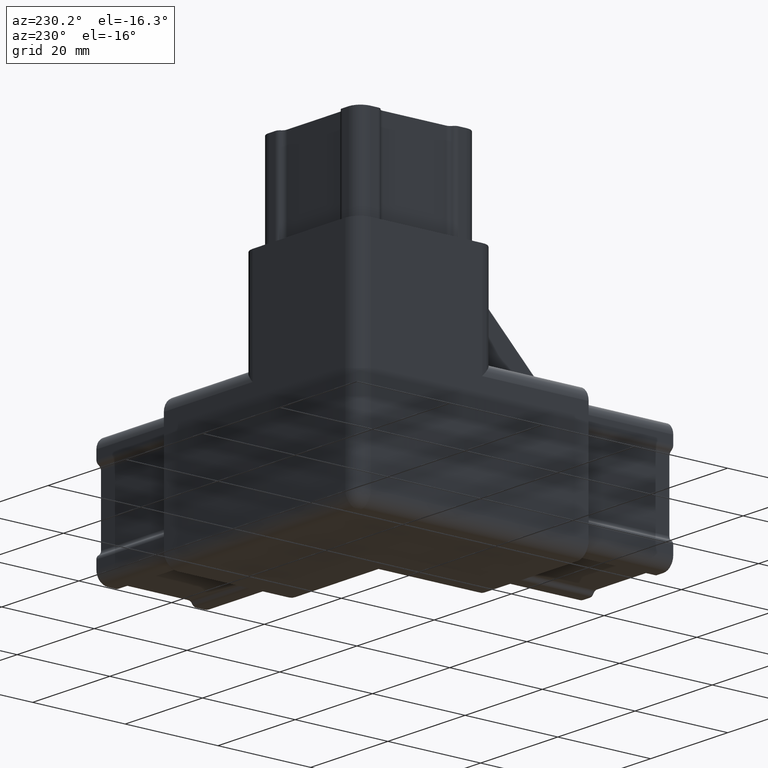
[diagram: clean part render]
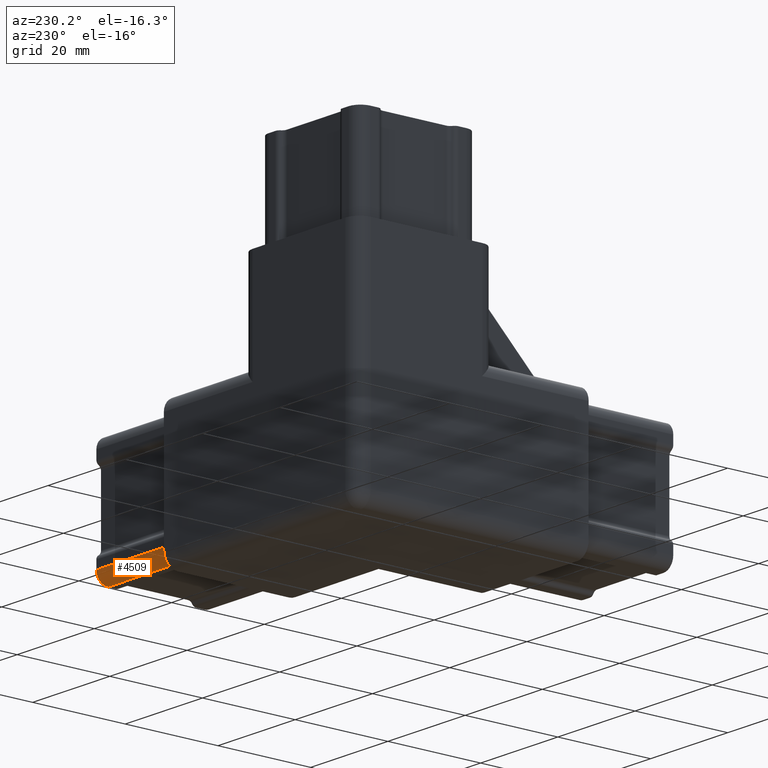
[diagram: same view with one face highlighted and labeled with its STEP entity id]
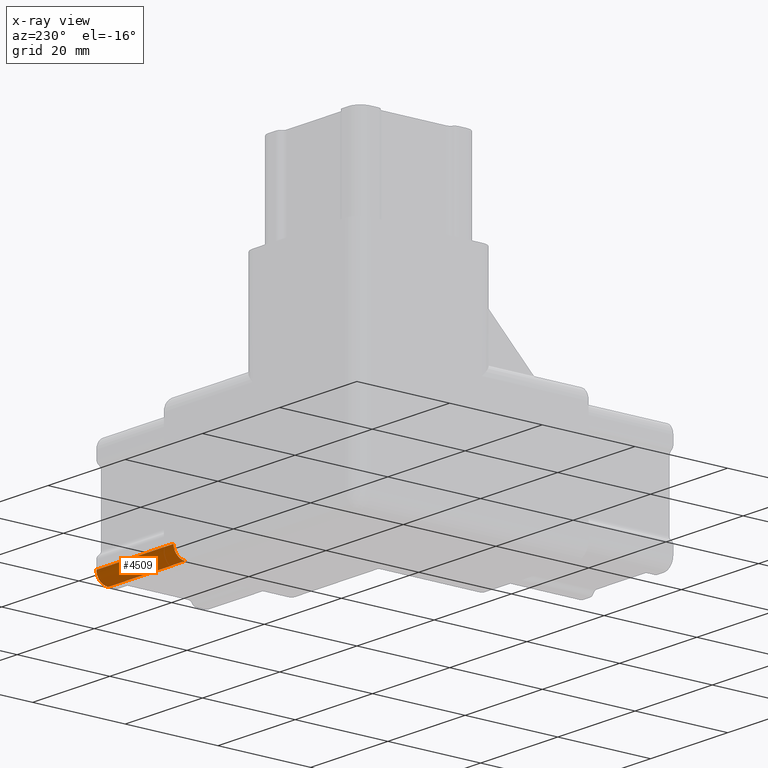
[diagram: x-ray of the same camera — body ghosted, the highlighted face saturated]
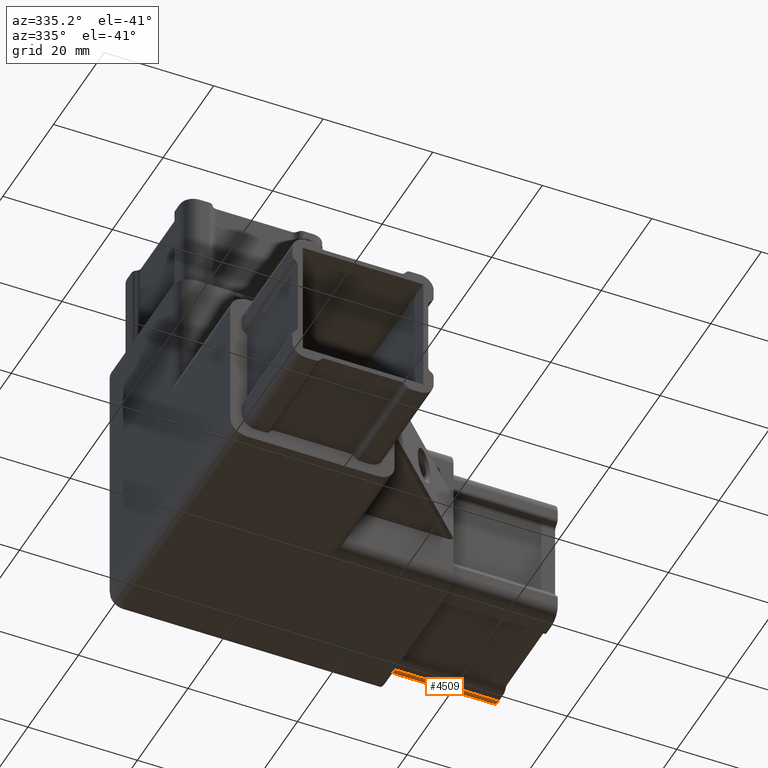
[diagram: same view with one face highlighted and labeled with its STEP entity id]
A machine part, auxiliary view. The second image highlights one B-rep face of the part: STEP entity #4509.
The next image is the same camera in x-ray: the body ghosted, the highlighted face saturated — about 0% of this face is hidden behind the body in this view.
A second angle (auxiliary view) of the same face is appended — the face is thin or edge-on in the first view.
In plain terms, the highlighted cylindrical surface (edge-blend (fillet) strip) has radius 2.5 mm, axis along (-1, 0, 0).
Its self-contained STEP definition (entity closure, byte-faithful):
#547 = DIRECTION ( 'NONE',  ( 1.000000000000000000, -0.0000000000000000000, -0.0000000000000000000 ) ) ;
#1419 = DIRECTION ( 'NONE',  ( -1.000000000000000000, -0.0000000000000000000, -0.0000000000000000000 ) ) ;
#2149 = LINE ( 'NONE', #16795, #9425 ) ;
#3634 = VERTEX_POINT ( 'NONE', #11854 ) ;
#4348 = CARTESIAN_POINT ( 'NONE',  ( 70.00000000000000000, 45.40000000000000600, -17.06666666666662700 ) ) ;
#4509 = ADVANCED_FACE ( 'NONE', ( #14103 ), #8622, .T. ) ;
#4566 = CIRCLE ( 'NONE', #15179, 2.499999999999998700 ) ;
#5797 = DIRECTION ( 'NONE',  ( 1.000000000000000000, 0.0000000000000000000, 0.0000000000000000000 ) ) ;
#6566 = VERTEX_POINT ( 'NONE', #8411 ) ;
#6901 = CARTESIAN_POINT ( 'NONE',  ( 50.00000000000000000, 45.40000000000000600, -19.56666666666662400 ) ) ;
#6976 = EDGE_LOOP ( 'NONE', ( #10047, #12726, #11195, #16738 ) ) ;
#7448 = EDGE_CURVE ( 'NONE', #7961, #6566, #4566, .T. ) ;
#7500 = CARTESIAN_POINT ( 'NONE',  ( 70.00000000000000000, 45.40000000000000600, -19.56666666666662400 ) ) ;
#7961 = VERTEX_POINT ( 'NONE', #17597 ) ;
#8411 = CARTESIAN_POINT ( 'NONE',  ( 70.00000000000000000, 47.90000000000000600, -17.06666666666662000 ) ) ;
#8429 = VERTEX_POINT ( 'NONE', #6901 ) ;
#8622 = CYLINDRICAL_SURFACE ( 'NONE', #19045, 2.500000000000000400 ) ;
#9149 = DIRECTION ( 'NONE',  ( -1.000000000000000000, 0.0000000000000000000, 0.0000000000000000000 ) ) ;
#9422 = LINE ( 'NONE', #7500, #17436 ) ;
#9425 = VECTOR ( 'NONE', #12315, 1000.000000000000000 ) ;
#10006 = EDGE_CURVE ( 'NONE', #3634, #8429, #18655, .T. ) ;
#10047 = ORIENTED_EDGE ( 'NONE', *, *, #7448, .F. ) ;
#10864 = AXIS2_PLACEMENT_3D ( 'NONE', #13423, #1419, #15069 ) ;
#11195 = ORIENTED_EDGE ( 'NONE', *, *, #10006, .F. ) ;
#11264 = EDGE_CURVE ( 'NONE', #6566, #3634, #2149, .T. ) ;
#11854 = CARTESIAN_POINT ( 'NONE',  ( 50.00000000000000000, 47.90000000000000600, -17.06666666666662000 ) ) ;
#12315 = DIRECTION ( 'NONE',  ( -1.000000000000000000, 0.0000000000000000000, 0.0000000000000000000 ) ) ;
#12726 = ORIENTED_EDGE ( 'NONE', *, *, #13962, .F. ) ;
#13423 = CARTESIAN_POINT ( 'NONE',  ( 50.00000000000000000, 45.40000000000000600, -17.06666666666662700 ) ) ;
#13489 = CARTESIAN_POINT ( 'NONE',  ( 70.00000000000000000, 45.40000000000000600, -17.06666666666662700 ) ) ;
#13962 = EDGE_CURVE ( 'NONE', #8429, #7961, #9422, .T. ) ;
#14103 = FACE_OUTER_BOUND ( 'NONE', #6976, .T. ) ;
#15001 = DIRECTION ( 'NONE',  ( 0.0000000000000000000, 0.0000000000000000000, 1.000000000000000000 ) ) ;
#15069 = DIRECTION ( 'NONE',  ( 0.0000000000000000000, 0.0000000000000000000, -1.000000000000000000 ) ) ;
#15179 = AXIS2_PLACEMENT_3D ( 'NONE', #4348, #5797, #16419 ) ;
#16419 = DIRECTION ( 'NONE',  ( 0.0000000000000000000, 0.0000000000000000000, -1.000000000000000000 ) ) ;
#16738 = ORIENTED_EDGE ( 'NONE', *, *, #11264, .F. ) ;
#16795 = CARTESIAN_POINT ( 'NONE',  ( 70.00000000000000000, 47.90000000000000600, -17.06666666666662700 ) ) ;
#17436 = VECTOR ( 'NONE', #547, 1000.000000000000000 ) ;
#17597 = CARTESIAN_POINT ( 'NONE',  ( 70.00000000000000000, 45.40000000000000600, -19.56666666666662400 ) ) ;
#18655 = CIRCLE ( 'NONE', #10864, 2.499999999999998700 ) ;
#19045 = AXIS2_PLACEMENT_3D ( 'NONE', #13489, #9149, #15001 ) ;